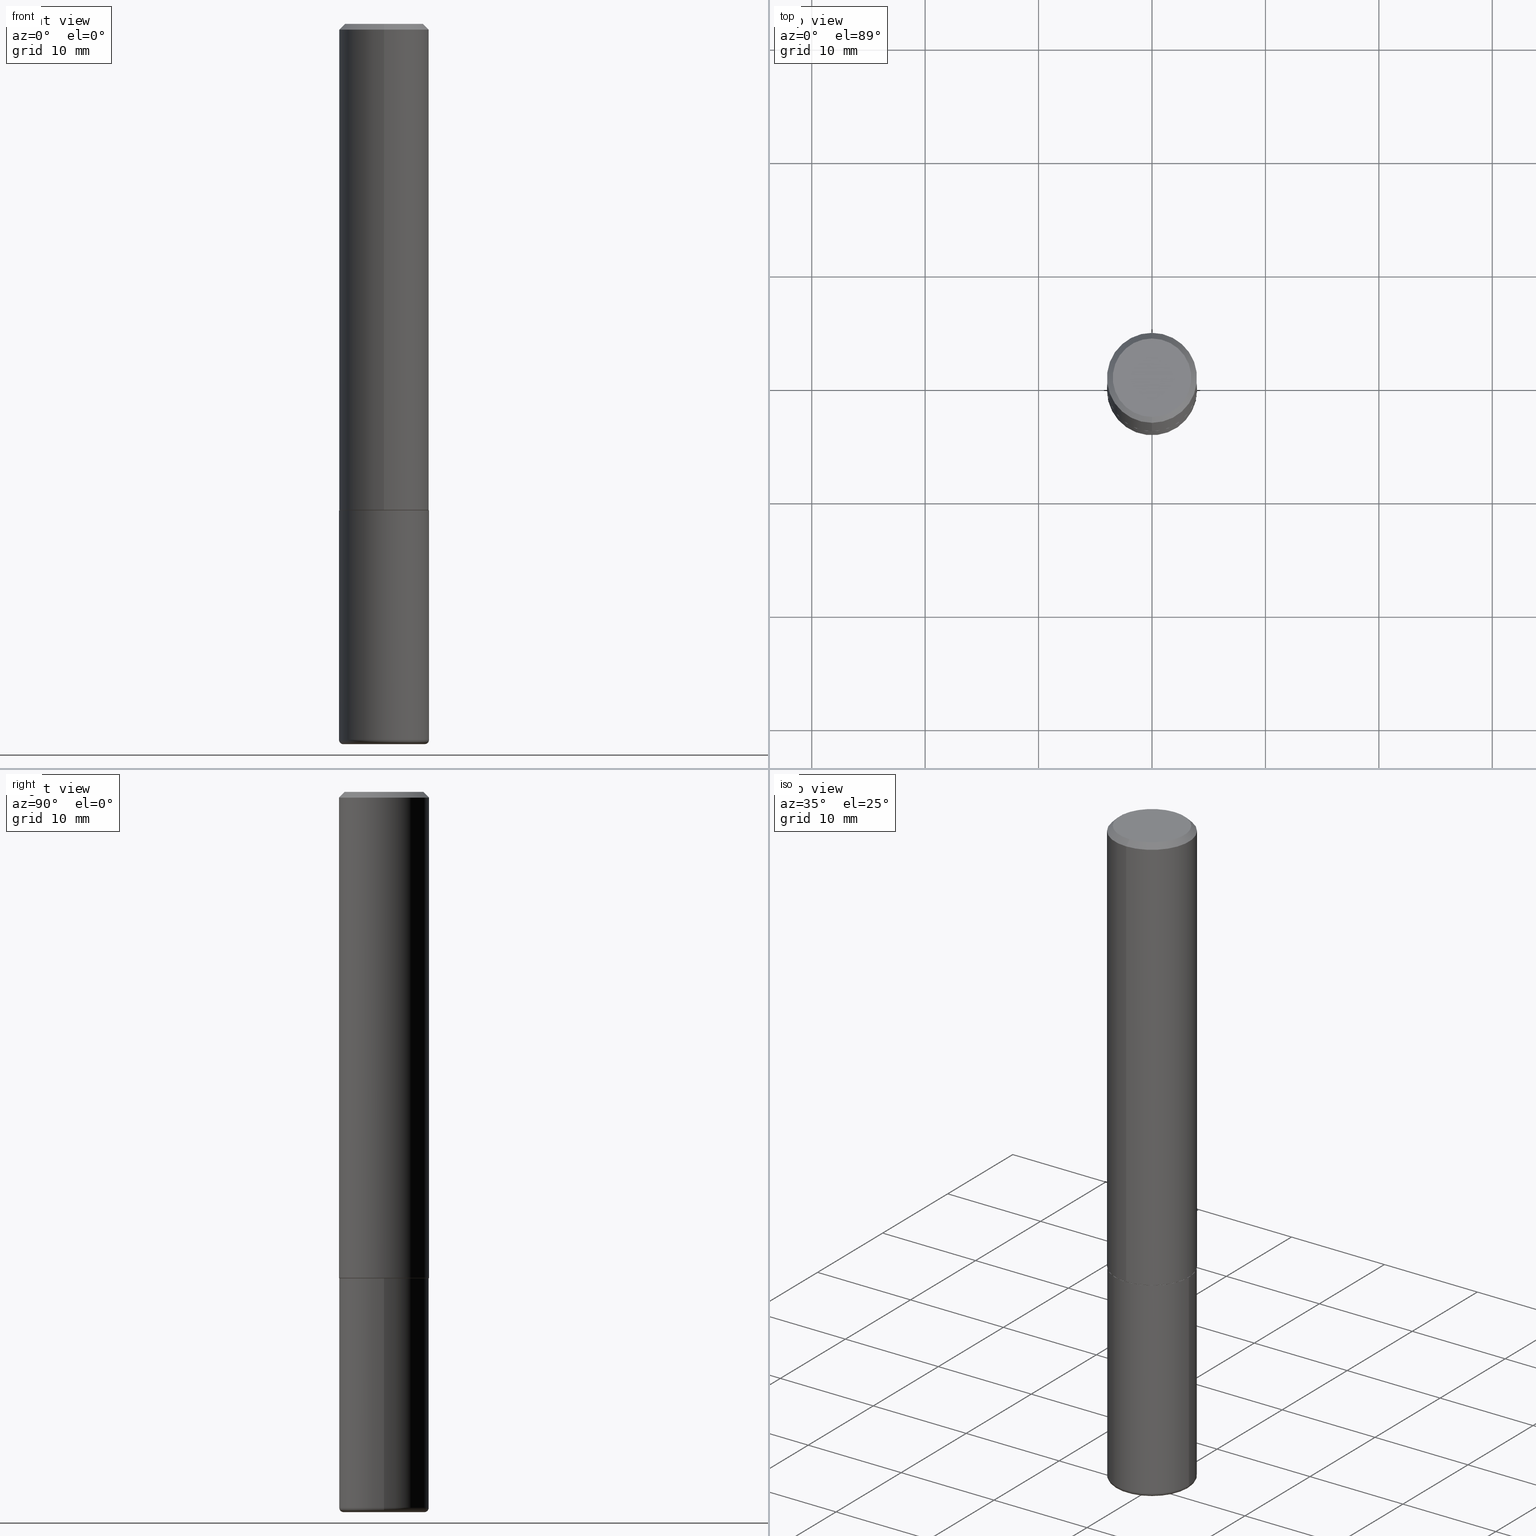
[diagram: canonical four-view strip — front | top / right | iso, engineering-drawing reading convention]
A machine part, canonical four-view strip (front | top / right | iso — engineering-drawing reading convention). The complete STEP part file that produces these views, byte-faithful:
ISO-10303-21;
HEADER;
FILE_DESCRIPTION (( 'STEP AP203' ),
    '1' );
FILE_NAME ('38231.STEP',
    '2024-03-02T19:00:01',
    ( '' ),
    ( '' ),
    'SwSTEP 2.0',
    'SolidWorks 2023',
    '' );
FILE_SCHEMA (( 'CONFIG_CONTROL_DESIGN' ));
ENDSEC;

DATA;
#1 = CARTESIAN_POINT ( 'NONE',  ( 4.127236349674729842E-29, -5.894644413739625756E-15, -1.688000000000000167 ) ) ;
#2 = ORIENTED_EDGE ( 'NONE', *, *, #117, .T. ) ;
#3 = AXIS2_PLACEMENT_3D ( 'NONE', #21, #285, #224 ) ;
#4 = LINE ( 'NONE', #31, #113 ) ;
#5 = CC_DESIGN_PERSON_AND_ORGANIZATION_ASSIGNMENT ( #62, #342, ( #235 ) ) ;
#6 = LINE ( 'NONE', #144, #221 ) ;
#7 = CARTESIAN_POINT ( 'NONE',  ( 6.076989983370064174E-29, -8.676331127025216680E-15, -2.484999999999999876 ) ) ;
#8 = ADVANCED_FACE ( 'NONE', ( #215 ), #240, .F. ) ;
#9 = TOROIDAL_SURFACE ( 'NONE', #121, 0.1412499999999999867, 0.01499999999999983985 ) ;
#10 = DIRECTION ( 'NONE',  ( -4.937700262164884886E-15, -0.7071067811865933139, 0.7071067811865017205 ) ) ;
#11 = LOCAL_TIME ( 14, 0, 1.000000000000000000, #120 ) ;
#12 = FACE_OUTER_BOUND ( 'NONE', #338, .T. ) ;
#13 = ORIENTED_EDGE ( 'NONE', *, *, #394, .T. ) ;
#14 = CARTESIAN_POINT ( 'NONE',  ( -0.1562500000000000000, -6.174752788871067364E-15, -1.688000000000000167 ) ) ;
#15 = CARTESIAN_POINT ( 'NONE',  ( 6.076989983370064174E-29, -8.676331127025216680E-15, -2.484999999999999876 ) ) ;
#16 = DIRECTION ( 'NONE',  ( 1.000000000000000000, -6.982962677686266711E-15, 4.876176775795936353E-29 ) ) ;
#17 = AXIS2_PLACEMENT_3D ( 'NONE', #86, #333, #295 ) ;
#18 = AXIS2_PLACEMENT_3D ( 'NONE', #36, #290, #72 ) ;
#19 = VERTEX_POINT ( 'NONE', #306 ) ;
#20 = DIRECTION ( 'NONE',  ( 1.000000000000000000, 0.000000000000000000, 0.000000000000000000 ) ) ;
#21 = CARTESIAN_POINT ( 'NONE',  ( -0.1412499999999999867, -7.672689512764074473E-15, -2.484999999999999876 ) ) ;
#22 = EDGE_CURVE ( 'NONE', #90, #61, #207, .T. ) ;
#23 = APPLICATION_PROTOCOL_DEFINITION ( 'international standard', 'config_control_design', 1994, #358 ) ;
#24 = CIRCLE ( 'NONE', #30, 0.1362500000000000933 ) ;
#25 = CC_DESIGN_APPROVAL ( #78, ( #371 ) ) ;
#26 = CALENDAR_DATE ( 2024, 2, 3 ) ;
#27 = DIRECTION ( 'NONE',  ( -6.982962677686265922E-15, -1.000000000000000000, 3.519288880726909138E-15 ) ) ;
#28 = ORIENTED_EDGE ( 'NONE', *, *, #22, .T. ) ;
#29 = DIRECTION ( 'NONE',  ( -2.445468806185136877E-29, 3.491481338843145188E-15, 1.000000000000000000 ) ) ;
#30 = AXIS2_PLACEMENT_3D ( 'NONE', #76, #173, #363 ) ;
#31 = CARTESIAN_POINT ( 'NONE',  ( 1.103117597267596553E-15, 0.1552499999999940872, -1.688000000000000611 ) ) ;
#32 = ORIENTED_EDGE ( 'NONE', *, *, #298, .F. ) ;
#33 = COORDINATED_UNIVERSAL_TIME_OFFSET ( 5, 0, .BEHIND. ) ;
#34 = FACE_OUTER_BOUND ( 'NONE', #115, .T. ) ;
#35 = CC_DESIGN_PERSON_AND_ORGANIZATION_ASSIGNMENT ( #223, #348, ( #235 ) ) ;
#36 = CARTESIAN_POINT ( 'NONE',  ( 1.286637735382378644E-28, 9.415550375444000163E-16, -2.500000000000000000 ) ) ;
#37 = AXIS2_PLACEMENT_3D ( 'NONE', #405, #79, #301 ) ;
#38 = CARTESIAN_POINT ( 'NONE',  ( 4.890090461699924977E-31, -6.984175845663074797E-17, -0.02000000000000003511 ) ) ;
#39 = FACE_OUTER_BOUND ( 'NONE', #98, .T. ) ;
#40 = CC_DESIGN_PERSON_AND_ORGANIZATION_ASSIGNMENT ( #376, #409, ( #371 ) ) ;
#41 = LINE ( 'NONE', #299, #102 ) ;
#42 = AXIS2_PLACEMENT_3D ( 'NONE', #52, #114, #302 ) ;
#43 = CARTESIAN_POINT ( 'NONE',  ( 1.106670310946397846E-15, 0.1552499999999940872, -1.688000000000000611 ) ) ;
#44 = CIRCLE ( 'NONE', #68, 0.1412499999999999867 ) ;
#45 = SECURITY_CLASSIFICATION ( '', '', #281 ) ;
#46 = VERTEX_POINT ( 'NONE', #174 ) ;
#47 = ADVANCED_FACE ( 'NONE', ( #406 ), #157, .T. ) ;
#48 = DIRECTION ( 'NONE',  ( -6.982962677686265922E-15, -1.000000000000000000, 3.519288880726909138E-15 ) ) ;
#49 = ORIENTED_EDGE ( 'NONE', *, *, #321, .F. ) ;
#50 = CARTESIAN_POINT ( 'NONE',  ( 0.1412499999999999867, -9.715046825331048380E-15, -2.499999999999999556 ) ) ;
#51 = DIRECTION ( 'NONE',  ( -2.445468806185136597E-29, 3.491481338843145583E-15, 1.000000000000000000 ) ) ;
#52 = CARTESIAN_POINT ( 'NONE',  ( 4.127951344840510809E-29, -5.893620499967230340E-15, -1.688000000000000167 ) ) ;
#53 = VECTOR ( 'NONE', #380, 39.37007874015748143 ) ;
#54 = CC_DESIGN_SECURITY_CLASSIFICATION ( #45, ( #235 ) ) ;
#55 = ORIENTED_EDGE ( 'NONE', *, *, #136, .F. ) ;
#56 = ADVANCED_FACE ( 'NONE', ( #300 ), #195, .T. ) ;
#57 = DIRECTION ( 'NONE',  ( -2.445468806185136597E-29, 3.491481338843145583E-15, 1.000000000000000000 ) ) ;
#58 = EDGE_LOOP ( 'NONE', ( #336, #216, #32, #288 ) ) ;
#59 = ORIENTED_EDGE ( 'NONE', *, *, #181, .T. ) ;
#60 = AXIS2_PLACEMENT_3D ( 'NONE', #260, #393, #262 ) ;
#61 = VERTEX_POINT ( 'NONE', #270 ) ;
#62 = PERSON_AND_ORGANIZATION ( #320, #318 ) ;
#63 = LINE ( 'NONE', #315, #247 ) ;
#64 = VERTEX_POINT ( 'NONE', #84 ) ;
#65 = SHAPE_DEFINITION_REPRESENTATION ( #387, #190 ) ;
#66 = DIRECTION ( 'NONE',  ( -2.445468806185136597E-29, 3.491481338843145583E-15, 1.000000000000000000 ) ) ;
#67 = CLOSED_SHELL ( 'NONE', ( #237, #331, #8, #75, #70, #307 ) ) ;
#68 = AXIS2_PLACEMENT_3D ( 'NONE', #395, #261, #396 ) ;
#69 = DATE_AND_TIME ( #198, #124 ) ;
#70 = ADVANCED_FACE ( 'NONE', ( #178 ), #9, .T. ) ;
#71 = PLANE ( 'NONE',  #18 ) ;
#72 = DIRECTION ( 'NONE',  ( -1.000000000000000000, 6.982962677686265922E-15, -4.876176775795935793E-29 ) ) ;
#73 = AXIS2_PLACEMENT_3D ( 'NONE', #334, #51, #16 ) ;
#74 = FACE_OUTER_BOUND ( 'NONE', #154, .T. ) ;
#75 = ADVANCED_FACE ( 'NONE', ( #370 ), #110, .T. ) ;
#76 = CARTESIAN_POINT ( 'NONE',  ( 1.250383974604437494E-45, -1.785836401521438243E-31, -5.113950281278734949E-17 ) ) ;
#77 = ORIENTED_EDGE ( 'NONE', *, *, #298, .T. ) ;
#78 = APPROVAL ( #156, 'UNSPECIFIED' ) ;
#79 = DIRECTION ( 'NONE',  ( -2.445468806185136597E-29, 3.491481338843145583E-15, 1.000000000000000000 ) ) ;
#80 = CIRCLE ( 'NONE', #344, 0.1562500000000000000 ) ;
#81 = LOCAL_TIME ( 14, 0, 1.000000000000000000, #253 ) ;
#82 = CARTESIAN_POINT ( 'NONE',  ( 4.890090461699924977E-31, -6.984175845663074797E-17, -0.02000000000000003511 ) ) ;
#83 = LENGTH_MEASURE_WITH_UNIT ( LENGTH_MEASURE( 0.02539999999999999897 ), #242 );
#84 = CARTESIAN_POINT ( 'NONE',  ( 1.110223024625178234E-15, 0.1562499999999943101, -1.687000000000000499 ) ) ;
#85 = ORIENTED_EDGE ( 'NONE', *, *, #101, .F. ) ;
#86 = CARTESIAN_POINT ( 'NONE',  ( 4.890090461699924977E-31, -6.984175845663074797E-17, -0.02000000000000003511 ) ) ;
#87 = AXIS2_PLACEMENT_3D ( 'NONE', #382, #189, #20 ) ;
#88 = LOCAL_TIME ( 14, 0, 1.000000000000000000, #96 ) ;
#89 = CARTESIAN_POINT ( 'NONE',  ( -1.071952812151801215E-15, -0.1562500000000000833, -0.01999999999999948694 ) ) ;
#90 = VERTEX_POINT ( 'NONE', #192 ) ;
#91 = APPROVAL_DATE_TIME ( #414, #78 ) ;
#92 = ORIENTED_EDGE ( 'NONE', *, *, #136, .T. ) ;
#93 = ADVANCED_FACE ( 'NONE', ( #97 ), #303, .T. ) ;
#94 = DATE_TIME_ROLE ( 'creation_date' ) ;
#95 = CIRCLE ( 'NONE', #326, 0.1552499999999999991 ) ;
#96 = COORDINATED_UNIVERSAL_TIME_OFFSET ( 5, 0, .BEHIND. ) ;
#97 = FACE_OUTER_BOUND ( 'NONE', #311, .T. ) ;
#98 = EDGE_LOOP ( 'NONE', ( #147, #196 ) ) ;
#99 = CARTESIAN_POINT ( 'NONE',  ( -1.071952812151801215E-15, -0.1562500000000000833, -0.01999999999999948694 ) ) ;
#100 = CARTESIAN_POINT ( 'NONE',  ( 0.000000000000000000, 0.000000000000000000, 0.000000000000000000 ) ) ;
#101 = EDGE_CURVE ( 'NONE', #384, #319, #263, .T. ) ;
#102 = VECTOR ( 'NONE', #332, 39.37007874015748143 ) ;
#103 = FACE_OUTER_BOUND ( 'NONE', #58, .T. ) ;
#104 = DIRECTION ( 'NONE',  ( -6.982962677686265922E-15, -1.000000000000000000, 3.492087922831532098E-15 ) ) ;
#105 = EDGE_CURVE ( 'NONE', #416, #319, #397, .T. ) ;
#106 = DIRECTION ( 'NONE',  ( 1.000000000000000000, -6.982962677686266711E-15, 4.876176775795936353E-29 ) ) ;
#107 = DIRECTION ( 'NONE',  ( -6.982962677686265922E-15, -1.000000000000000000, 3.492087922831532098E-15 ) ) ;
#108 = CC_DESIGN_APPROVAL ( #176, ( #235 ) ) ;
#109 = DIRECTION ( 'NONE',  ( -2.445045230849958565E-29, 3.492087922831531704E-15, 1.000000000000000000 ) ) ;
#110 = CYLINDRICAL_SURFACE ( 'NONE', #73, 0.1562500000000000000 ) ;
#111 = ORIENTED_EDGE ( 'NONE', *, *, #359, .F. ) ;
#112 = DIRECTION ( 'NONE',  ( 6.982962677686265922E-15, 1.000000000000000000, -3.492087922831532098E-15 ) ) ;
#113 = VECTOR ( 'NONE', #232, 39.37007874015748143 ) ;
#114 = DIRECTION ( 'NONE',  ( 2.438088387897960049E-29, -3.491481338843145188E-15, -1.000000000000000000 ) ) ;
#115 = EDGE_LOOP ( 'NONE', ( #328, #111 ) ) ;
#116 = ORIENTED_EDGE ( 'NONE', *, *, #366, .F. ) ;
#117 = EDGE_CURVE ( 'NONE', #372, #280, #80, .T. ) ;
#118 = DIRECTION ( 'NONE',  ( -6.982962677686265922E-15, -1.000000000000000000, 3.492087922831531704E-15 ) ) ;
#119 = ORIENTED_EDGE ( 'NONE', *, *, #172, .F. ) ;
#120 = COORDINATED_UNIVERSAL_TIME_OFFSET ( 5, 0, .BEHIND. ) ;
#121 = AXIS2_PLACEMENT_3D ( 'NONE', #15, #401, #365 ) ;
#122 = LINE ( 'NONE', #310, #53 ) ;
#123 = ORIENTED_EDGE ( 'NONE', *, *, #22, .F. ) ;
#124 = LOCAL_TIME ( 14, 0, 1.000000000000000000, #33 ) ;
#125 = APPROVAL_STATUS ( 'not_yet_approved' ) ;
#126 = CARTESIAN_POINT ( 'NONE',  ( 4.127951344840510809E-29, -5.893620499967230340E-15, -1.688000000000000167 ) ) ;
#127 = ORIENTED_EDGE ( 'NONE', *, *, #105, .T. ) ;
#128 = EDGE_CURVE ( 'NONE', #64, #245, #383, .T. ) ;
#129 = PERSON_AND_ORGANIZATION_ROLE ( 'classification_officer' ) ;
#130 = ORIENTED_EDGE ( 'NONE', *, *, #417, .T. ) ;
#131 = CALENDAR_DATE ( 2024, 2, 3 ) ;
#132 = ORIENTED_EDGE ( 'NONE', *, *, #352, .F. ) ;
#133 = AXIS2_PLACEMENT_3D ( 'NONE', #38, #168, #293 ) ;
#134 = DIRECTION ( 'NONE',  ( -2.445468806185136597E-29, 3.491481338843145583E-15, 1.000000000000000000 ) ) ;
#135 = ORIENTED_EDGE ( 'NONE', *, *, #394, .F. ) ;
#136 = EDGE_CURVE ( 'NONE', #46, #184, #339, .T. ) ;
#137 = FACE_OUTER_BOUND ( 'NONE', #282, .T. ) ;
#138 = UNCERTAINTY_MEASURE_WITH_UNIT (LENGTH_MEASURE( 1.000000000000000082E-05 ), #212, 'distance_accuracy_value', 'NONE');
#139 = PERSON_AND_ORGANIZATION ( #320, #318 ) ;
#140 = CARTESIAN_POINT ( 'NONE',  ( 4.890090461699924977E-31, -6.984175845663074797E-17, -0.02000000000000003511 ) ) ;
#141 = PRODUCT_RELATED_PRODUCT_CATEGORY ( 'detail', '', ( #226 ) ) ;
#142 = AXIS2_PLACEMENT_3D ( 'NONE', #187, #220, #248 ) ;
#143 = EDGE_CURVE ( 'NONE', #61, #184, #122, .T. ) ;
#144 = CARTESIAN_POINT ( 'NONE',  ( 0.1562500000000000000, -1.091087918388479174E-15, 7.619026212181150377E-30 ) ) ;
#145 = CARTESIAN_POINT ( 'NONE',  ( 0.000000000000000000, 0.000000000000000000, 0.000000000000000000 ) ) ;
#146 = DIRECTION ( 'NONE',  ( -6.982962677686265922E-15, -1.000000000000000000, 3.519288880726909138E-15 ) ) ;
#147 = ORIENTED_EDGE ( 'NONE', *, *, #152, .F. ) ;
#148 = CARTESIAN_POINT ( 'NONE',  ( 4.124791304443880664E-29, -5.891152325816794336E-15, -1.687000000000000055 ) ) ;
#149 = AXIS2_PLACEMENT_3D ( 'NONE', #227, #251, #390 ) ;
#150 = EDGE_LOOP ( 'NONE', ( #381, #180, #28, #132 ) ) ;
#151 = EDGE_LOOP ( 'NONE', ( #135, #92, #77, #116 ) ) ;
#152 = EDGE_CURVE ( 'NONE', #384, #222, #317, .T. ) ;
#153 = DIRECTION ( 'NONE',  ( -6.982962677686265922E-15, -1.000000000000000000, 3.496765431890251792E-15 ) ) ;
#154 = EDGE_LOOP ( 'NONE', ( #239, #400, #160, #85 ) ) ;
#155 = PERSON_AND_ORGANIZATION ( #320, #318 ) ;
#156 = APPROVAL_STATUS ( 'not_yet_approved' ) ;
#157 = CONICAL_SURFACE ( 'NONE', #375, 0.1562500000000000000, 0.7853981633974468357 ) ;
#158 = CC_DESIGN_PERSON_AND_ORGANIZATION_ASSIGNMENT ( #155, #277, ( #226 ) ) ;
#159 = AXIS2_PLACEMENT_3D ( 'NONE', #100, #322, #107 ) ;
#160 = ORIENTED_EDGE ( 'NONE', *, *, #230, .F. ) ;
#161 = EDGE_LOOP ( 'NONE', ( #55, #313, #340, #346 ) ) ;
#162 = CARTESIAN_POINT ( 'NONE',  ( 4.127951344840510809E-29, -5.893620499967230340E-15, -1.688000000000000167 ) ) ;
#163 = ORIENTED_EDGE ( 'NONE', *, *, #352, .T. ) ;
#164 = AXIS2_PLACEMENT_3D ( 'NONE', #364, #305, #146 ) ;
#165 = EDGE_CURVE ( 'NONE', #222, #416, #369, .T. ) ;
#166 = CARTESIAN_POINT ( 'NONE',  ( 4.127236349674729842E-29, -5.894644413739625756E-15, -1.688000000000000167 ) ) ;
#167 = CIRCLE ( 'NONE', #402, 0.1562500000000000000 ) ;
#168 = DIRECTION ( 'NONE',  ( -2.445045230849958565E-29, 3.492087922831531704E-15, 1.000000000000000000 ) ) ;
#169 = ORIENTED_EDGE ( 'NONE', *, *, #172, .T. ) ;
#170 = CC_DESIGN_DATE_AND_TIME_ASSIGNMENT ( #246, #94, ( #371 ) ) ;
#171 = DIRECTION ( 'NONE',  ( -6.982962677686265922E-15, -1.000000000000000000, 3.492087922831532098E-15 ) ) ;
#172 = EDGE_CURVE ( 'NONE', #416, #372, #63, .T. ) ;
#173 = DIRECTION ( 'NONE',  ( -2.445045230849958565E-29, 3.492087922831531704E-15, 1.000000000000000000 ) ) ;
#174 = CARTESIAN_POINT ( 'NONE',  ( -1.003347832174086278E-15, -0.1362500000000000933, 4.246574766730091504E-16 ) ) ;
#175 = ORIENTED_EDGE ( 'NONE', *, *, #256, .T. ) ;
#176 = APPROVAL ( #125, 'UNSPECIFIED' ) ;
#177 = CARTESIAN_POINT ( 'NONE',  ( -0.1562499999999999167, -7.566108102400061717E-15, -2.484999999999999876 ) ) ;
#178 = FACE_OUTER_BOUND ( 'NONE', #201, .T. ) ;
#179 = PLANE ( 'NONE',  #304 ) ;
#180 = ORIENTED_EDGE ( 'NONE', *, *, #359, .T. ) ;
#181 = EDGE_CURVE ( 'NONE', #280, #372, #183, .T. ) ;
#182 = AXIS2_PLACEMENT_3D ( 'NONE', #1, #413, #27 ) ;
#183 = CIRCLE ( 'NONE', #241, 0.1562500000000000000 ) ;
#184 = VERTEX_POINT ( 'NONE', #89 ) ;
#185 = APPLICATION_PROTOCOL_DEFINITION ( 'international standard', 'config_control_design', 1994, #291 ) ;
#186 = APPROVAL_ROLE ( '' ) ;
#187 = CARTESIAN_POINT ( 'NONE',  ( 6.113672015462840371E-29, -8.728703347107863365E-15, -2.499999999999999556 ) ) ;
#188 = ORIENTED_EDGE ( 'NONE', *, *, #165, .F. ) ;
#189 = DIRECTION ( 'NONE',  ( 0.000000000000000000, 0.000000000000000000, 1.000000000000000000 ) ) ;
#190 = ADVANCED_BREP_SHAPE_REPRESENTATION ( '38231', ( #373, #233, #87 ), #408 ) ;
#191 = VECTOR ( 'NONE', #217, 39.37007874015748143 ) ;
#192 = CARTESIAN_POINT ( 'NONE',  ( -1.084104955710751547E-15, -0.1552500000000059110, -1.687999999999999501 ) ) ;
#193 = EDGE_CURVE ( 'NONE', #61, #64, #205, .T. ) ;
#194 = DIRECTION ( 'NONE',  ( -6.982962677686265133E-15, -1.000000000000000000, 3.496765431890256920E-15 ) ) ;
#195 = CONICAL_SURFACE ( 'NONE', #17, 0.1562500000000000000, 0.7853981633974468357 ) ;
#196 = ORIENTED_EDGE ( 'NONE', *, *, #256, .F. ) ;
#197 = CIRCLE ( 'NONE', #133, 0.1562500000000000000 ) ;
#198 = CALENDAR_DATE ( 2024, 2, 3 ) ;
#199 = CYLINDRICAL_SURFACE ( 'NONE', #292, 0.1562500000000000000 ) ;
#200 = CALENDAR_DATE ( 2024, 2, 3 ) ;
#201 = EDGE_LOOP ( 'NONE', ( #188, #175, #349, #252 ) ) ;
#202 = DATE_TIME_ROLE ( 'classification_date' ) ;
#203 = CC_DESIGN_PERSON_AND_ORGANIZATION_ASSIGNMENT ( #412, #129, ( #45 ) ) ;
#204 = CARTESIAN_POINT ( 'NONE',  ( 0.1562499999999999167, -9.767419045413696643E-15, -2.484999999999999876 ) ) ;
#205 = CIRCLE ( 'NONE', #60, 0.1562500000000002220 ) ;
#206 = ORIENTED_EDGE ( 'NONE', *, *, #264, .T. ) ;
#207 = LINE ( 'NONE', #213, #274 ) ;
#208 = CIRCLE ( 'NONE', #259, 0.1562499999999999722 ) ;
#209 = APPROVAL_PERSON_ORGANIZATION ( #407, #78, #186 ) ;
#210 = DIRECTION ( 'NONE',  ( -6.982962677686265922E-15, -1.000000000000000000, 3.519288880726909138E-15 ) ) ;
#211 = DIRECTION ( 'NONE',  ( 2.445045230849958565E-29, -3.492087922831531704E-15, -1.000000000000000000 ) ) ;
#212 =( CONVERSION_BASED_UNIT ( 'INCH', #83 ) LENGTH_UNIT ( ) NAMED_UNIT ( #347 ) );
#213 = CARTESIAN_POINT ( 'NONE',  ( -1.084104955710751547E-15, -0.1552500000000059110, -1.687999999999999501 ) ) ;
#214 = AXIS2_PLACEMENT_3D ( 'NONE', #148, #109, #153 ) ;
#215 = FACE_OUTER_BOUND ( 'NONE', #271, .T. ) ;
#216 = ORIENTED_EDGE ( 'NONE', *, *, #128, .T. ) ;
#217 = DIRECTION ( 'NONE',  ( -2.445045230849958565E-29, 3.492087922831532098E-15, 1.000000000000000000 ) ) ;
#218 = APPROVAL_DATE_TIME ( #379, #176 ) ;
#219 = ORIENTED_EDGE ( 'NONE', *, *, #181, .F. ) ;
#220 = DIRECTION ( 'NONE',  ( -2.445468806185136597E-29, 3.491481338843145583E-15, 1.000000000000000000 ) ) ;
#221 = VECTOR ( 'NONE', #361, 39.37007874015748143 ) ;
#222 = VERTEX_POINT ( 'NONE', #294 ) ;
#223 = PERSON_AND_ORGANIZATION ( #320, #318 ) ;
#224 = DIRECTION ( 'NONE',  ( -1.000000000000000000, 7.105427357601001859E-15, 0.000000000000000000 ) ) ;
#225 = DESIGN_CONTEXT ( 'detailed design', #358, 'design' ) ;
#226 = PRODUCT ( '38231', '38231', '', ( #279 ) ) ;
#227 = CARTESIAN_POINT ( 'NONE',  ( 0.1412499999999999867, -9.662674605248401695E-15, -2.484999999999999876 ) ) ;
#228 = PLANE ( 'NONE',  #354 ) ;
#229 = LOCAL_TIME ( 14, 0, 1.000000000000000000, #257 ) ;
#230 = EDGE_CURVE ( 'NONE', #319, #416, #208, .T. ) ;
#231 = DIRECTION ( 'NONE',  ( -2.445045230849958565E-29, 3.492087922831531704E-15, 1.000000000000000000 ) ) ;
#232 = DIRECTION ( 'NONE',  ( 5.024295867788404755E-15, 0.7071067811865981989, 0.7071067811864968355 ) ) ;
#233 = MANIFOLD_SOLID_BREP ( 'Body-Move/Copy2[2]', #268 ) ;
#234 = AXIS2_PLACEMENT_3D ( 'NONE', #254, #308, #415 ) ;
#235 = PRODUCT_DEFINITION_FORMATION_WITH_SPECIFIED_SOURCE ( 'ANY', '', #226, .NOT_KNOWN. ) ;
#236 = CYLINDRICAL_SURFACE ( 'NONE', #297, 0.1562500000000001110 ) ;
#237 = ADVANCED_FACE ( 'NONE', ( #137 ), #199, .T. ) ;
#238 = DIRECTION ( 'NONE',  ( 2.445045230849957724E-29, -3.492087922831532098E-15, -1.000000000000000000 ) ) ;
#239 = ORIENTED_EDGE ( 'NONE', *, *, #152, .T. ) ;
#240 = PLANE ( 'NONE',  #42 ) ;
#241 = AXIS2_PLACEMENT_3D ( 'NONE', #162, #134, #377 ) ;
#242 =( LENGTH_UNIT ( ) NAMED_UNIT ( * ) SI_UNIT ( $, .METRE. ) );
#243 = ORIENTED_EDGE ( 'NONE', *, *, #143, .T. ) ;
#244 =( NAMED_UNIT ( * ) PLANE_ANGLE_UNIT ( ) SI_UNIT ( $, .RADIAN. ) );
#245 = VERTEX_POINT ( 'NONE', #267 ) ;
#246 = DATE_AND_TIME ( #386, #229 ) ;
#247 = VECTOR ( 'NONE', #29, 39.37007874015748143 ) ;
#248 = DIRECTION ( 'NONE',  ( 1.000000000000000000, -6.982962677686270655E-15, 0.000000000000000000 ) ) ;
#249 = ORIENTED_EDGE ( 'NONE', *, *, #193, .F. ) ;
#250 = APPROVAL_ROLE ( '' ) ;
#251 = DIRECTION ( 'NONE',  ( -6.982962677686266711E-15, -1.000000000000000000, 3.491481338843145583E-15 ) ) ;
#252 = ORIENTED_EDGE ( 'NONE', *, *, #105, .F. ) ;
#253 = COORDINATED_UNIVERSAL_TIME_OFFSET ( 5, 0, .BEHIND. ) ;
#254 = CARTESIAN_POINT ( 'NONE',  ( 6.076989983370064174E-29, -8.676331127025216680E-15, -2.484999999999999876 ) ) ;
#255 = ORIENTED_EDGE ( 'NONE', *, *, #325, .T. ) ;
#256 = EDGE_CURVE ( 'NONE', #222, #384, #44, .T. ) ;
#257 = COORDINATED_UNIVERSAL_TIME_OFFSET ( 5, 0, .BEHIND. ) ;
#258 = DIRECTION ( 'NONE',  ( -4.851104656540956386E-15, -0.7071067811865489050, -0.7071067811865461294 ) ) ;
#259 = AXIS2_PLACEMENT_3D ( 'NONE', #7, #323, #357 ) ;
#260 = CARTESIAN_POINT ( 'NONE',  ( 4.124791304443880664E-29, -5.891152325816794336E-15, -1.687000000000000055 ) ) ;
#261 = DIRECTION ( 'NONE',  ( -2.445468806185136597E-29, 3.491481338843145583E-15, 1.000000000000000000 ) ) ;
#262 = DIRECTION ( 'NONE',  ( -6.982962677686265922E-15, -1.000000000000000000, 3.496765431890251792E-15 ) ) ;
#263 = CIRCLE ( 'NONE', #149, 0.01499999999999983985 ) ;
#264 = EDGE_CURVE ( 'NONE', #351, #64, #4, .T. ) ;
#265 = DATE_AND_TIME ( #200, #81 ) ;
#266 = ADVANCED_FACE ( 'NONE', ( #103 ), #391, .T. ) ;
#267 = CARTESIAN_POINT ( 'NONE',  ( 1.091087918388479568E-15, 0.1562499999999999445, -0.02000000000000057981 ) ) ;
#268 = CLOSED_SHELL ( 'NONE', ( #93, #266, #47, #56, #283, #403, #272, #410 ) ) ;
#269 = CARTESIAN_POINT ( 'NONE',  ( 9.514286648347543521E-16, 0.1362500000000000933, -5.013667308921901438E-16 ) ) ;
#270 = CARTESIAN_POINT ( 'NONE',  ( -1.091087918388439336E-15, -0.1562500000000061062, -1.686999999999999611 ) ) ;
#271 = EDGE_LOOP ( 'NONE', ( #59, #2 ) ) ;
#272 = ADVANCED_FACE ( 'NONE', ( #34 ), #228, .F. ) ;
#273 = DIRECTION ( 'NONE',  ( -2.445045230849958565E-29, 3.492087922831531704E-15, 1.000000000000000000 ) ) ;
#274 = VECTOR ( 'NONE', #10, 39.37007874015748143 ) ;
#275 = DIRECTION ( 'NONE',  ( -2.445045230849958565E-29, 3.492087922831531704E-15, 1.000000000000000000 ) ) ;
#276 = CARTESIAN_POINT ( 'NONE',  ( 1.250383974604437494E-45, -1.785836401521438243E-31, -5.113950281278734949E-17 ) ) ;
#277 = PERSON_AND_ORGANIZATION_ROLE ( 'design_owner' ) ;
#278 = CIRCLE ( 'NONE', #164, 0.1552499999999999991 ) ;
#279 = MECHANICAL_CONTEXT ( 'NONE', #291, 'mechanical' ) ;
#280 = VERTEX_POINT ( 'NONE', #327 ) ;
#281 = SECURITY_CLASSIFICATION_LEVEL ( 'unclassified' ) ;
#282 = EDGE_LOOP ( 'NONE', ( #378, #169, #219, #284 ) ) ;
#283 = ADVANCED_FACE ( 'NONE', ( #355 ), #236, .T. ) ;
#284 = ORIENTED_EDGE ( 'NONE', *, *, #325, .F. ) ;
#285 = DIRECTION ( 'NONE',  ( 7.105427357601001859E-15, 1.000000000000000000, -3.491481338843145583E-15 ) ) ;
#286 = AXIS2_PLACEMENT_3D ( 'NONE', #404, #273, #48 ) ;
#287 = CC_DESIGN_APPROVAL ( #345, ( #45 ) ) ;
#288 = ORIENTED_EDGE ( 'NONE', *, *, #143, .F. ) ;
#289 = ORIENTED_EDGE ( 'NONE', *, *, #117, .F. ) ;
#290 = DIRECTION ( 'NONE',  ( 2.438088387897960049E-29, -3.491481338843145188E-15, -1.000000000000000000 ) ) ;
#291 = APPLICATION_CONTEXT ( 'configuration controlled 3d designs of mechanical parts and assemblies' ) ;
#292 = AXIS2_PLACEMENT_3D ( 'NONE', #145, #66, #106 ) ;
#293 = DIRECTION ( 'NONE',  ( -6.982962677686265133E-15, -1.000000000000000000, 3.496765431890256920E-15 ) ) ;
#294 = CARTESIAN_POINT ( 'NONE',  ( -0.1412499999999999867, -7.645584917623391438E-15, -2.499999999999999556 ) ) ;
#295 = DIRECTION ( 'NONE',  ( 6.982962677686265133E-15, 1.000000000000000000, -3.496765431890256920E-15 ) ) ;
#296 = CIRCLE ( 'NONE', #214, 0.1562500000000002220 ) ;
#297 = AXIS2_PLACEMENT_3D ( 'NONE', #316, #231, #104 ) ;
#298 = EDGE_CURVE ( 'NONE', #184, #245, #167, .T. ) ;
#299 = CARTESIAN_POINT ( 'NONE',  ( 1.091087918388479568E-15, 0.1562499999999999445, -0.02000000000000057981 ) ) ;
#300 = FACE_OUTER_BOUND ( 'NONE', #161, .T. ) ;
#301 = DIRECTION ( 'NONE',  ( 1.000000000000000000, -6.982962677686264344E-15, 4.883557194083111780E-29 ) ) ;
#302 = DIRECTION ( 'NONE',  ( -1.000000000000000000, 6.982962677686265922E-15, -4.876176775795935793E-29 ) ) ;
#303 = CONICAL_SURFACE ( 'NONE', #182, 0.1552499999999999991, 0.7853981633975165577 ) ;
#304 = AXIS2_PLACEMENT_3D ( 'NONE', #269, #238, #112 ) ;
#305 = DIRECTION ( 'NONE',  ( -2.445045230849958565E-29, 3.492087922831531704E-15, 1.000000000000000000 ) ) ;
#306 = CARTESIAN_POINT ( 'NONE',  ( 1.021258291611616861E-15, 0.1362500000000000933, -5.269364822985837754E-16 ) ) ;
#307 = ADVANCED_FACE ( 'NONE', ( #39 ), #71, .T. ) ;
#308 = DIRECTION ( 'NONE',  ( -2.445468806185136597E-29, 3.491481338843145583E-15, 1.000000000000000000 ) ) ;
#309 = PERSON_AND_ORGANIZATION ( #320, #318 ) ;
#310 = CARTESIAN_POINT ( 'NONE',  ( -1.091087918388479765E-15, -0.1562500000000001110, 5.456387379424272725E-16 ) ) ;
#311 = EDGE_LOOP ( 'NONE', ( #411, #206, #249, #123 ) ) ;
#312 = VECTOR ( 'NONE', #258, 39.37007874015748143 ) ;
#313 = ORIENTED_EDGE ( 'NONE', *, *, #417, .F. ) ;
#314 = CC_DESIGN_DATE_AND_TIME_ASSIGNMENT ( #265, #202, ( #45 ) ) ;
#315 = CARTESIAN_POINT ( 'NONE',  ( -0.1562500000000000000, 1.110223024625156540E-15, -7.685836078523291160E-30 ) ) ;
#316 = CARTESIAN_POINT ( 'NONE',  ( 0.000000000000000000, 0.000000000000000000, 0.000000000000000000 ) ) ;
#317 = CIRCLE ( 'NONE', #142, 0.1412499999999999867 ) ;
#318 = ORGANIZATION ( 'UNSPECIFIED', 'UNSPECIFIED', '' ) ;
#319 = VERTEX_POINT ( 'NONE', #204 ) ;
#320 = PERSON ( 'UNSPECIFIED', 'UNSPECIFIED', 'UNSPECIFIED', ('UNSPECIFIED'), ('UNSPECIFIED'), ('UNSPECIFIED') ) ;
#321 = EDGE_CURVE ( 'NONE', #245, #184, #197, .T. ) ;
#322 = DIRECTION ( 'NONE',  ( -2.445045230849958565E-29, 3.492087922831531704E-15, 1.000000000000000000 ) ) ;
#323 = DIRECTION ( 'NONE',  ( -2.445468806185136597E-29, 3.491481338843145583E-15, 1.000000000000000000 ) ) ;
#324 = DIRECTION ( 'NONE',  ( -2.445045230849957724E-29, 3.492087922831532098E-15, 1.000000000000000000 ) ) ;
#325 = EDGE_CURVE ( 'NONE', #319, #280, #6, .T. ) ;
#326 = AXIS2_PLACEMENT_3D ( 'NONE', #329, #367, #210 ) ;
#327 = CARTESIAN_POINT ( 'NONE',  ( 0.1562500000000000000, -6.984708418355709513E-15, -1.688000000000000167 ) ) ;
#328 = ORIENTED_EDGE ( 'NONE', *, *, #341, .F. ) ;
#329 = CARTESIAN_POINT ( 'NONE',  ( 4.127236349674729842E-29, -5.894644413739625756E-15, -1.688000000000000167 ) ) ;
#330 = EDGE_LOOP ( 'NONE', ( #119, #127, #255, #289 ) ) ;
#331 = ADVANCED_FACE ( 'NONE', ( #74 ), #337, .T. ) ;
#332 = DIRECTION ( 'NONE',  ( 4.937700262164540154E-15, 0.7071067811865440200, -0.7071067811865510144 ) ) ;
#333 = DIRECTION ( 'NONE',  ( 2.445045230849958565E-29, -3.492087922831531704E-15, -1.000000000000000000 ) ) ;
#334 = CARTESIAN_POINT ( 'NONE',  ( 0.000000000000000000, 0.000000000000000000, 0.000000000000000000 ) ) ;
#335 =( NAMED_UNIT ( * ) SI_UNIT ( $, .STERADIAN. ) SOLID_ANGLE_UNIT ( ) );
#336 = ORIENTED_EDGE ( 'NONE', *, *, #193, .T. ) ;
#337 = TOROIDAL_SURFACE ( 'NONE', #37, 0.1412499999999999867, 0.01499999999999983985 ) ;
#338 = EDGE_LOOP ( 'NONE', ( #130, #13 ) ) ;
#339 = LINE ( 'NONE', #99, #312 ) ;
#340 = ORIENTED_EDGE ( 'NONE', *, *, #366, .T. ) ;
#341 = EDGE_CURVE ( 'NONE', #90, #351, #278, .T. ) ;
#342 = PERSON_AND_ORGANIZATION_ROLE ( 'design_supplier' ) ;
#343 = EDGE_LOOP ( 'NONE', ( #368, #163, #243, #49 ) ) ;
#344 = AXIS2_PLACEMENT_3D ( 'NONE', #126, #57, #388 ) ;
#345 = APPROVAL ( #389, 'UNSPECIFIED' ) ;
#346 = ORIENTED_EDGE ( 'NONE', *, *, #321, .T. ) ;
#347 = DIMENSIONAL_EXPONENTS ( 1.000000000000000000, 0.000000000000000000, 0.000000000000000000, 0.000000000000000000, 0.000000000000000000, 0.000000000000000000, 0.000000000000000000 ) ;
#348 = PERSON_AND_ORGANIZATION_ROLE ( 'creator' ) ;
#349 = ORIENTED_EDGE ( 'NONE', *, *, #101, .T. ) ;
#350 = CARTESIAN_POINT ( 'NONE',  ( 1.110223024625157132E-15, 0.1562500000000001110, -5.456387379424272725E-16 ) ) ;
#351 = VERTEX_POINT ( 'NONE', #43 ) ;
#352 = EDGE_CURVE ( 'NONE', #64, #61, #296, .T. ) ;
#353 = APPROVAL_ROLE ( '' ) ;
#354 = AXIS2_PLACEMENT_3D ( 'NONE', #166, #324, #171 ) ;
#355 = FACE_OUTER_BOUND ( 'NONE', #343, .T. ) ;
#356 = APPROVAL_DATE_TIME ( #69, #345 ) ;
#357 = DIRECTION ( 'NONE',  ( 1.000000000000000000, -6.982962677686270655E-15, 0.000000000000000000 ) ) ;
#358 = APPLICATION_CONTEXT ( 'configuration controlled 3d designs of mechanical parts and assemblies' ) ;
#359 = EDGE_CURVE ( 'NONE', #351, #90, #95, .T. ) ;
#360 = DIRECTION ( 'NONE',  ( -2.445045230849958565E-29, 3.492087922831531704E-15, 1.000000000000000000 ) ) ;
#361 = DIRECTION ( 'NONE',  ( -2.445468806185136877E-29, 3.491481338843145188E-15, 1.000000000000000000 ) ) ;
#362 = CONICAL_SURFACE ( 'NONE', #286, 0.1552499999999999991, 0.7853981633975165577 ) ;
#363 = DIRECTION ( 'NONE',  ( -6.982962677686265922E-15, -1.000000000000000000, 3.492087922831531704E-15 ) ) ;
#364 = CARTESIAN_POINT ( 'NONE',  ( 4.127236349674729842E-29, -5.894644413739625756E-15, -1.688000000000000167 ) ) ;
#365 = DIRECTION ( 'NONE',  ( 1.000000000000000000, -6.982962677686264344E-15, 4.883557194083111780E-29 ) ) ;
#366 = EDGE_CURVE ( 'NONE', #19, #245, #41, .T. ) ;
#367 = DIRECTION ( 'NONE',  ( -2.445045230849958565E-29, 3.492087922831531704E-15, 1.000000000000000000 ) ) ;
#368 = ORIENTED_EDGE ( 'NONE', *, *, #128, .F. ) ;
#369 = CIRCLE ( 'NONE', #3, 0.01499999999999983985 ) ;
#370 = FACE_OUTER_BOUND ( 'NONE', #330, .T. ) ;
#371 = PRODUCT_DEFINITION ( 'UNKNOWN', '', #235, #225 ) ;
#372 = VERTEX_POINT ( 'NONE', #14 ) ;
#373 = MANIFOLD_SOLID_BREP ( 'Body-Move/Copy2[1]', #67 ) ;
#374 = DIRECTION ( 'NONE',  ( 6.982962677686265133E-15, 1.000000000000000000, -3.496765431890256920E-15 ) ) ;
#375 = AXIS2_PLACEMENT_3D ( 'NONE', #82, #211, #374 ) ;
#376 = PERSON_AND_ORGANIZATION ( #320, #318 ) ;
#377 = DIRECTION ( 'NONE',  ( 1.000000000000000000, -6.982962677686269077E-15, 0.000000000000000000 ) ) ;
#378 = ORIENTED_EDGE ( 'NONE', *, *, #230, .T. ) ;
#379 = DATE_AND_TIME ( #26, #88 ) ;
#380 = DIRECTION ( 'NONE',  ( -2.445045230849958565E-29, 3.492087922831532098E-15, 1.000000000000000000 ) ) ;
#381 = ORIENTED_EDGE ( 'NONE', *, *, #264, .F. ) ;
#382 = CARTESIAN_POINT ( 'NONE',  ( 0.000000000000000000, 0.000000000000000000, 0.000000000000000000 ) ) ;
#383 = LINE ( 'NONE', #350, #191 ) ;
#384 = VERTEX_POINT ( 'NONE', #50 ) ;
#385 = AXIS2_PLACEMENT_3D ( 'NONE', #276, #275, #118 ) ;
#386 = CALENDAR_DATE ( 2024, 2, 3 ) ;
#387 = PRODUCT_DEFINITION_SHAPE ( 'NONE', 'NONE',  #371 ) ;
#388 = DIRECTION ( 'NONE',  ( 1.000000000000000000, -6.982962677686269077E-15, 0.000000000000000000 ) ) ;
#389 = APPROVAL_STATUS ( 'not_yet_approved' ) ;
#390 = DIRECTION ( 'NONE',  ( 1.000000000000000000, -6.982962677686213068E-15, 0.000000000000000000 ) ) ;
#391 = CYLINDRICAL_SURFACE ( 'NONE', #159, 0.1562500000000001110 ) ;
#392 = CIRCLE ( 'NONE', #385, 0.1362500000000000933 ) ;
#393 = DIRECTION ( 'NONE',  ( -2.445045230849958565E-29, 3.492087922831531704E-15, 1.000000000000000000 ) ) ;
#394 = EDGE_CURVE ( 'NONE', #46, #19, #392, .T. ) ;
#395 = CARTESIAN_POINT ( 'NONE',  ( 6.113672015462840371E-29, -8.728703347107863365E-15, -2.499999999999999556 ) ) ;
#396 = DIRECTION ( 'NONE',  ( 1.000000000000000000, -6.982962677686270655E-15, 0.000000000000000000 ) ) ;
#397 = CIRCLE ( 'NONE', #234, 0.1562499999999999722 ) ;
#398 = APPROVAL_PERSON_ORGANIZATION ( #139, #345, #353 ) ;
#399 = FACE_OUTER_BOUND ( 'NONE', #150, .T. ) ;
#400 = ORIENTED_EDGE ( 'NONE', *, *, #165, .T. ) ;
#401 = DIRECTION ( 'NONE',  ( -2.445468806185136597E-29, 3.491481338843145583E-15, 1.000000000000000000 ) ) ;
#402 = AXIS2_PLACEMENT_3D ( 'NONE', #140, #360, #194 ) ;
#403 = ADVANCED_FACE ( 'NONE', ( #399 ), #362, .T. ) ;
#404 = CARTESIAN_POINT ( 'NONE',  ( 4.127236349674729842E-29, -5.894644413739625756E-15, -1.688000000000000167 ) ) ;
#405 = CARTESIAN_POINT ( 'NONE',  ( 6.076989983370064174E-29, -8.676331127025216680E-15, -2.484999999999999876 ) ) ;
#406 = FACE_OUTER_BOUND ( 'NONE', #151, .T. ) ;
#407 = PERSON_AND_ORGANIZATION ( #320, #318 ) ;
#408 =( GEOMETRIC_REPRESENTATION_CONTEXT ( 3 ) GLOBAL_UNCERTAINTY_ASSIGNED_CONTEXT ( ( #138 ) ) GLOBAL_UNIT_ASSIGNED_CONTEXT ( ( #212, #244, #335 ) ) REPRESENTATION_CONTEXT ( 'NONE', 'WORKASPACE' ) );
#409 = PERSON_AND_ORGANIZATION_ROLE ( 'creator' ) ;
#410 = ADVANCED_FACE ( 'NONE', ( #12 ), #179, .F. ) ;
#411 = ORIENTED_EDGE ( 'NONE', *, *, #341, .T. ) ;
#412 = PERSON_AND_ORGANIZATION ( #320, #318 ) ;
#413 = DIRECTION ( 'NONE',  ( -2.445045230849958565E-29, 3.492087922831531704E-15, 1.000000000000000000 ) ) ;
#414 = DATE_AND_TIME ( #131, #11 ) ;
#415 = DIRECTION ( 'NONE',  ( 1.000000000000000000, -6.982962677686270655E-15, 0.000000000000000000 ) ) ;
#416 = VERTEX_POINT ( 'NONE', #177 ) ;
#417 = EDGE_CURVE ( 'NONE', #19, #46, #24, .T. ) ;
#418 = APPROVAL_PERSON_ORGANIZATION ( #309, #176, #250 ) ;
ENDSEC;
END-ISO-10303-21;
